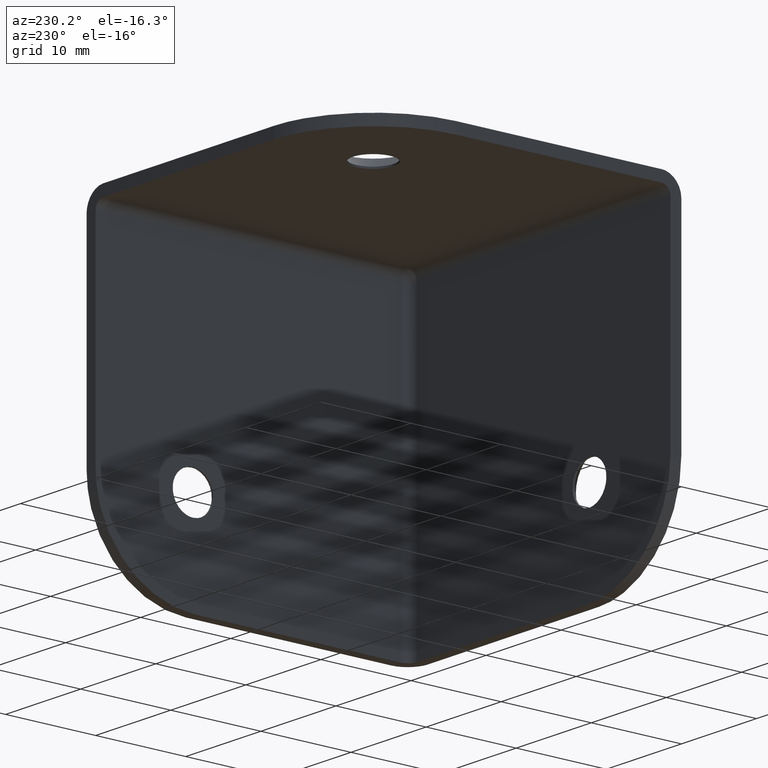
[diagram: clean part render]
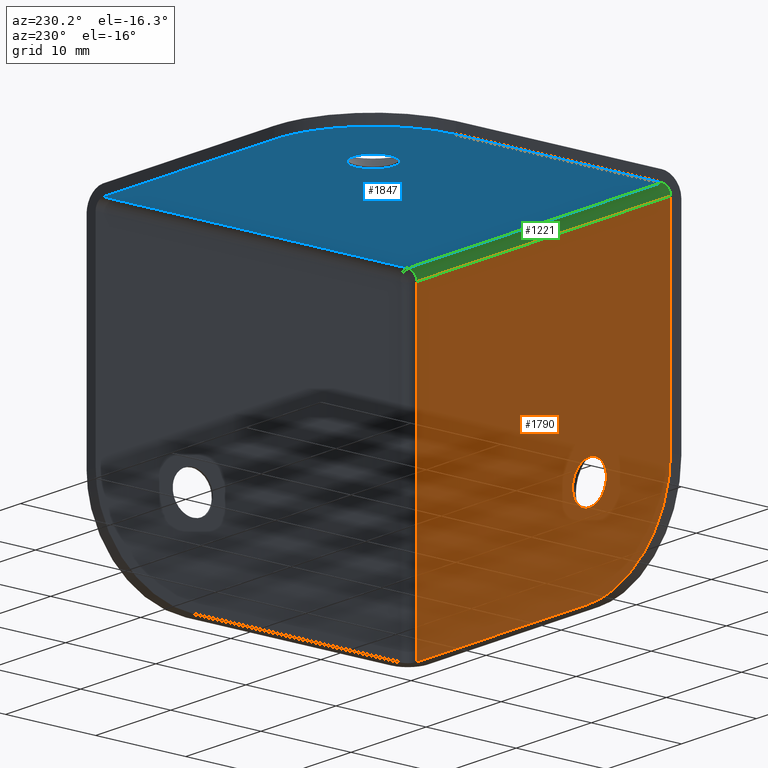
[diagram: same view with three faces highlighted in distinct colors, each labeled with its STEP entity id]
A machine part, auxiliary view with three faces highlighted in distinct colors.
Their STEP definitions:

[orange] entity #1790 — the highlighted face is a freeform B-spline surface patch.
#955=CARTESIAN_POINT('',(-22.965728565688440,1.200000000000016,11.065577028033950));
#956=VERTEX_POINT('',#955);
#962=CARTESIAN_POINT('',(-25.199999999999999,1.200000000000016,8.550000000000001));
#963=VERTEX_POINT('',#962);
#964=CARTESIAN_POINT('',(-22.965728565688437,1.200000000000016,11.065577028033951));
#965=CARTESIAN_POINT('',(-22.950000000000003,1.200000000000016,10.933254269273634));
#966=CARTESIAN_POINT('',(-22.949999999999999,1.200000000000016,10.800000000000001));
#967=CARTESIAN_POINT('',(-22.950000000000010,1.200000000000016,8.550000000000001));
#968=CARTESIAN_POINT('',(-25.199999999999999,1.200000000000016,8.550000000000001));
#976=(BOUNDED_CURVE()B_SPLINE_CURVE(2,(#964,#965,#966,#967,#968),.UNSPECIFIED.,.F.,.U.)B_SPLINE_CURVE_WITH_KNOTS((3,2,3),(0.229562473507136,0.250000000000000,0.500000000000000),.UNSPECIFIED.)CURVE()GEOMETRIC_REPRESENTATION_ITEM()RATIONAL_B_SPLINE_CURVE((0.956026754171209,0.976055948323679,1.0,0.707106781186547,1.0))REPRESENTATION_ITEM(''));
#977=EDGE_CURVE('',#956,#963,#976,.T.);
#979=CARTESIAN_POINT('',(-27.445803295993969,1.200000000000016,10.662640778603659));
#980=VERTEX_POINT('',#979);
#981=CARTESIAN_POINT('',(-25.199999999999999,1.200000000000016,8.550000000000001));
#982=CARTESIAN_POINT('',(-27.316588636482226,1.200000000000016,8.549999999999999));
#983=CARTESIAN_POINT('',(-27.445803295993976,1.200000000000016,10.662640778603658));
#991=(BOUNDED_CURVE()B_SPLINE_CURVE(2,(#981,#982,#983),.UNSPECIFIED.,.F.,.U.)B_SPLINE_CURVE_WITH_KNOTS((3,3),(0.500000000000000,0.739332961098278),.UNSPECIFIED.)CURVE()GEOMETRIC_REPRESENTATION_ITEM()RATIONAL_B_SPLINE_CURVE((1.0,0.719603994623083,0.976072039222055))REPRESENTATION_ITEM(''));
#992=EDGE_CURVE('',#963,#980,#991,.T.);
#1026=CARTESIAN_POINT('',(-25.199999999999999,1.200000000000016,13.050000000000001));
#1027=VERTEX_POINT('',#1026);
#1028=CARTESIAN_POINT('',(-27.445803295993972,1.200000000000016,10.662640778603665));
#1029=CARTESIAN_POINT('',(-27.449999999999999,1.200000000000016,10.731256275114390));
#1030=CARTESIAN_POINT('',(-27.449999999999999,1.200000000000016,10.800000000000001));
#1031=CARTESIAN_POINT('',(-27.449999999999999,1.200000000000016,13.050000000000001));
#1032=CARTESIAN_POINT('',(-25.199999999999999,1.200000000000016,13.050000000000001));
#1040=(BOUNDED_CURVE()B_SPLINE_CURVE(2,(#1028,#1029,#1030,#1031,#1032),.UNSPECIFIED.,.F.,.U.)B_SPLINE_CURVE_WITH_KNOTS((3,2,3),(0.739332961098279,0.750000000000000,1.0),.UNSPECIFIED.)CURVE()GEOMETRIC_REPRESENTATION_ITEM()RATIONAL_B_SPLINE_CURVE((0.976072039222057,0.987502786563466,1.0,0.707106781186547,1.0))REPRESENTATION_ITEM(''));
#1041=EDGE_CURVE('',#980,#1027,#1040,.T.);
#1043=CARTESIAN_POINT('',(-25.199999999999999,1.200000000000016,13.050000000000001));
#1044=CARTESIAN_POINT('',(-23.201607316710742,1.200000000000016,13.050000000000001));
#1045=CARTESIAN_POINT('',(-22.965728565688440,1.200000000000016,11.065577028033955));
#1053=(BOUNDED_CURVE()B_SPLINE_CURVE(2,(#1043,#1044,#1045),.UNSPECIFIED.,.F.,.U.)B_SPLINE_CURVE_WITH_KNOTS((3,3),(0.0,0.229562473507136),.UNSPECIFIED.)CURVE()GEOMETRIC_REPRESENTATION_ITEM()RATIONAL_B_SPLINE_CURVE((1.0,0.731050832862868,0.956026754171209))REPRESENTATION_ITEM(''));
#1054=EDGE_CURVE('',#1027,#956,#1053,.T.);
#1074=CARTESIAN_POINT('',(-2.200000000000000,1.200000000000016,0.0));
#1075=VERTEX_POINT('',#1074);
#1091=CARTESIAN_POINT('',(-2.200000000000000,1.200000000000016,33.799999999999997));
#1092=VERTEX_POINT('',#1091);
#1093=CARTESIAN_POINT('',(-2.200000000000000,1.200000000000016,33.799999999999997));
#1094=CARTESIAN_POINT('',(-2.200000000000000,1.200000000000016,0.0));
#1095=QUASI_UNIFORM_CURVE('',1,(#1093,#1094),.UNSPECIFIED.,.F.,.U.);
#1096=EDGE_CURVE('',#1092,#1075,#1095,.T.);
#1193=CARTESIAN_POINT('',(-36.0,1.200000000000016,33.799999999999997));
#1194=VERTEX_POINT('',#1193);
#1214=CARTESIAN_POINT('',(-36.0,1.200000000000016,33.799999999999997));
#1215=CARTESIAN_POINT('',(-2.200000000000000,1.200000000000016,33.799999999999997));
#1216=QUASI_UNIFORM_CURVE('',1,(#1214,#1215),.UNSPECIFIED.,.F.,.U.);
#1217=EDGE_CURVE('',#1194,#1092,#1216,.T.);
#1683=CARTESIAN_POINT('',(-25.0,1.199999999999980,0.0));
#1684=VERTEX_POINT('',#1683);
#1690=CARTESIAN_POINT('',(-25.0,1.199999999999980,0.0));
#1691=CARTESIAN_POINT('',(-2.200000000000000,1.200000000000016,0.0));
#1692=QUASI_UNIFORM_CURVE('',1,(#1690,#1691),.UNSPECIFIED.,.F.,.U.);
#1693=EDGE_CURVE('',#1684,#1075,#1692,.T.);
#1720=CARTESIAN_POINT('',(-36.0,1.199999999999980,11.0));
#1721=VERTEX_POINT('',#1720);
#1727=CARTESIAN_POINT('',(-36.000000000000007,1.199999999999980,11.0));
#1728=CARTESIAN_POINT('',(-36.000000000000014,1.199999999999980,0.0));
#1729=CARTESIAN_POINT('',(-25.0,1.199999999999980,0.0));
#1737=(BOUNDED_CURVE()B_SPLINE_CURVE(2,(#1727,#1728,#1729),.UNSPECIFIED.,.F.,.U.)CURVE()GEOMETRIC_REPRESENTATION_ITEM()QUASI_UNIFORM_CURVE()RATIONAL_B_SPLINE_CURVE((1.0,0.707106781186548,1.0))REPRESENTATION_ITEM(''));
#1738=EDGE_CURVE('',#1721,#1684,#1737,.T.);
#1763=CARTESIAN_POINT('',(-36.0,1.200000000000016,33.799999999999997));
#1764=CARTESIAN_POINT('',(-36.0,1.199999999999980,11.0));
#1765=QUASI_UNIFORM_CURVE('',1,(#1763,#1764),.UNSPECIFIED.,.F.,.U.);
#1766=EDGE_CURVE('',#1194,#1721,#1765,.T.);
#1772=CARTESIAN_POINT('',(-37.688309934489041,1.200000000000016,35.488309299908600));
#1773=CARTESIAN_POINT('',(-0.511689158924312,1.200000000000016,35.488309299908600));
#1774=CARTESIAN_POINT('',(-37.688309934489041,1.200000000000016,-1.688310810886352));
#1775=CARTESIAN_POINT('',(-0.511689158924312,1.200000000000016,-1.688310810886352));
#1776=B_SPLINE_SURFACE_WITH_KNOTS('',1,1,((#1772,#1774),(#1773,#1775)),.UNSPECIFIED.,.F.,.F.,.U.,(2,2),(2,2),(0.0,37.176620775564729),(0.0,37.176620110794950),.UNSPECIFIED.);
#1777=ORIENTED_EDGE('',*,*,#1217,.T.);
#1778=ORIENTED_EDGE('',*,*,#1096,.T.);
#1779=ORIENTED_EDGE('',*,*,#1693,.F.);
#1780=ORIENTED_EDGE('',*,*,#1738,.F.);
#1781=ORIENTED_EDGE('',*,*,#1766,.F.);
#1782=EDGE_LOOP('',(#1777,#1778,#1779,#1780,#1781));
#1783=FACE_OUTER_BOUND('',#1782,.T.);
#1784=ORIENTED_EDGE('',*,*,#992,.F.);
#1785=ORIENTED_EDGE('',*,*,#977,.F.);
#1786=ORIENTED_EDGE('',*,*,#1054,.F.);
#1787=ORIENTED_EDGE('',*,*,#1041,.F.);
#1788=EDGE_LOOP('',(#1784,#1785,#1786,#1787));
#1789=FACE_BOUND('',#1788,.T.);
#1790=ADVANCED_FACE('',(#1783,#1789),#1776,.T.);

[blue] entity #1847 — the highlighted face is a freeform B-spline surface patch.
#79=CARTESIAN_POINT('',(-24.943273435128098,27.435305677281981,34.799999999999997));
#80=VERTEX_POINT('',#79);
#86=CARTESIAN_POINT('',(-22.949999999999999,25.199999999999999,34.799999999999997));
#87=VERTEX_POINT('',#86);
#88=CARTESIAN_POINT('',(-24.943273435128102,27.435305677281978,34.799999999999997));
#89=CARTESIAN_POINT('',(-22.950000000000006,27.206376637814156,34.799999999999983));
#90=CARTESIAN_POINT('',(-22.949999999999999,25.199999999999999,34.799999999999997));
#98=(BOUNDED_CURVE()B_SPLINE_CURVE(2,(#88,#89,#90),.UNSPECIFIED.,.F.,.U.)B_SPLINE_CURVE_WITH_KNOTS((3,3),(0.269767766355862,0.500000000000000),.UNSPECIFIED.)CURVE()GEOMETRIC_REPRESENTATION_ITEM()RATIONAL_B_SPLINE_CURVE((0.957343715789334,0.730266160053430,1.0))REPRESENTATION_ITEM(''));
#99=EDGE_CURVE('',#80,#87,#98,.T.);
#101=CARTESIAN_POINT('',(-25.062640785535610,22.954196703582049,34.799999999999997));
#102=VERTEX_POINT('',#101);
#103=CARTESIAN_POINT('',(-22.949999999999999,25.199999999999999,34.799999999999997));
#104=CARTESIAN_POINT('',(-22.949999999999999,23.083411350427138,34.799999999999990));
#105=CARTESIAN_POINT('',(-25.062640785535606,22.954196703582049,34.800000000000004));
#113=(BOUNDED_CURVE()B_SPLINE_CURVE(2,(#103,#104,#105),.UNSPECIFIED.,.F.,.U.)B_SPLINE_CURVE_WITH_KNOTS((3,3),(0.500000000000000,0.739332962163452),.UNSPECIFIED.)CURVE()GEOMETRIC_REPRESENTATION_ITEM()RATIONAL_B_SPLINE_CURVE((1.0,0.719603993375153,0.976072041504927))REPRESENTATION_ITEM(''));
#114=EDGE_CURVE('',#87,#102,#113,.T.);
#209=CARTESIAN_POINT('',(-27.449999999999999,25.199999999999999,34.799999999999997));
#210=VERTEX_POINT('',#209);
#211=CARTESIAN_POINT('',(-25.062640785535606,22.954196703582049,34.799999999999990));
#212=CARTESIAN_POINT('',(-25.131256282065785,22.949999999999999,34.799999999999990));
#213=CARTESIAN_POINT('',(-25.199999999999999,22.949999999999999,34.799999999999997));
#214=CARTESIAN_POINT('',(-27.449999999999999,22.950000000000010,34.799999999999997));
#215=CARTESIAN_POINT('',(-27.449999999999999,25.199999999999999,34.799999999999997));
#223=(BOUNDED_CURVE()B_SPLINE_CURVE(2,(#211,#212,#213,#214,#215),.UNSPECIFIED.,.F.,.U.)B_SPLINE_CURVE_WITH_KNOTS((3,2,3),(0.739332962163453,0.750000000000000,1.0),.UNSPECIFIED.)CURVE()GEOMETRIC_REPRESENTATION_ITEM()RATIONAL_B_SPLINE_CURVE((0.976072041504928,0.987502787811395,1.0,0.707106781186547,1.0))REPRESENTATION_ITEM(''));
#224=EDGE_CURVE('',#102,#210,#223,.T.);
#226=CARTESIAN_POINT('',(-27.449999999999999,25.199999999999999,34.799999999999997));
#227=CARTESIAN_POINT('',(-27.449999999999999,27.449999999999999,34.799999999999997));
#228=CARTESIAN_POINT('',(-25.199999999999999,27.449999999999999,34.799999999999997));
#229=CARTESIAN_POINT('',(-25.071216151303840,27.449999999999996,34.800000000000004));
#230=CARTESIAN_POINT('',(-24.943273435128095,27.435305677281985,34.800000000000004));
#238=(BOUNDED_CURVE()B_SPLINE_CURVE(2,(#226,#227,#228,#229,#230),.UNSPECIFIED.,.F.,.U.)B_SPLINE_CURVE_WITH_KNOTS((3,2,3),(0.0,0.250000000000000,0.269767766355862),.UNSPECIFIED.)CURVE()GEOMETRIC_REPRESENTATION_ITEM()RATIONAL_B_SPLINE_CURVE((1.0,0.707106781186547,1.0,0.976840621133117,0.957343715789334))REPRESENTATION_ITEM(''));
#239=EDGE_CURVE('',#210,#80,#238,.T.);
#1145=CARTESIAN_POINT('',(-2.200000000000000,2.200000000000000,34.799999999999997));
#1146=VERTEX_POINT('',#1145);
#1191=CARTESIAN_POINT('',(-36.0,2.200000000000000,34.799999999999997));
#1192=VERTEX_POINT('',#1191);
#1208=CARTESIAN_POINT('',(-2.200000000000000,2.200000000000000,34.799999999999997));
#1209=CARTESIAN_POINT('',(-36.0,2.200000000000000,34.799999999999997));
#1210=QUASI_UNIFORM_CURVE('',1,(#1208,#1209),.UNSPECIFIED.,.F.,.U.);
#1211=EDGE_CURVE('',#1146,#1192,#1210,.T.);
#1238=CARTESIAN_POINT('',(-2.200000000000000,36.0,34.799999999999997));
#1239=VERTEX_POINT('',#1238);
#1259=CARTESIAN_POINT('',(-2.200000000000000,36.0,34.799999999999997));
#1260=CARTESIAN_POINT('',(-2.200000000000000,2.200000000000000,34.799999999999997));
#1261=QUASI_UNIFORM_CURVE('',1,(#1259,#1260),.UNSPECIFIED.,.F.,.U.);
#1262=EDGE_CURVE('',#1239,#1146,#1261,.T.);
#1505=CARTESIAN_POINT('',(-25.0,36.0,34.799999999999997));
#1506=VERTEX_POINT('',#1505);
#1512=CARTESIAN_POINT('',(-36.0,25.0,34.799999999999997));
#1513=VERTEX_POINT('',#1512);
#1514=CARTESIAN_POINT('',(-36.000000000000007,25.0,34.799999999999997));
#1515=CARTESIAN_POINT('',(-36.000000000000014,36.000000000000014,34.800000000000004));
#1516=CARTESIAN_POINT('',(-25.0,36.000000000000007,34.799999999999997));
#1524=(BOUNDED_CURVE()B_SPLINE_CURVE(2,(#1514,#1515,#1516),.UNSPECIFIED.,.F.,.U.)CURVE()GEOMETRIC_REPRESENTATION_ITEM()QUASI_UNIFORM_CURVE()RATIONAL_B_SPLINE_CURVE((1.0,0.707106781186548,1.0))REPRESENTATION_ITEM(''));
#1525=EDGE_CURVE('',#1513,#1506,#1524,.T.);
#1619=CARTESIAN_POINT('',(-25.0,36.0,34.799999999999997));
#1620=CARTESIAN_POINT('',(-2.200000000000000,36.0,34.799999999999997));
#1621=QUASI_UNIFORM_CURVE('',1,(#1619,#1620),.UNSPECIFIED.,.F.,.U.);
#1622=EDGE_CURVE('',#1506,#1239,#1621,.T.);
#1757=CARTESIAN_POINT('',(-36.0,2.200000000000000,34.799999999999997));
#1758=CARTESIAN_POINT('',(-36.0,25.0,34.799999999999997));
#1759=QUASI_UNIFORM_CURVE('',1,(#1757,#1758),.UNSPECIFIED.,.F.,.U.);
#1760=EDGE_CURVE('',#1192,#1513,#1759,.T.);
#1829=CARTESIAN_POINT('',(-37.688309934489041,37.688309934489048,34.799999999999997));
#1830=CARTESIAN_POINT('',(-0.511689158924312,37.688309934489048,34.799999999999997));
#1831=CARTESIAN_POINT('',(-37.688309934489041,0.511689158924312,34.799999999999997));
#1832=CARTESIAN_POINT('',(-0.511689158924312,0.511689158924312,34.799999999999997));
#1833=B_SPLINE_SURFACE_WITH_KNOTS('',1,1,((#1829,#1831),(#1830,#1832)),.UNSPECIFIED.,.F.,.F.,.U.,(2,2),(2,2),(0.0,37.176620775564729),(0.0,37.176620775564743),.UNSPECIFIED.);
#1834=ORIENTED_EDGE('',*,*,#1622,.T.);
#1835=ORIENTED_EDGE('',*,*,#1262,.T.);
#1836=ORIENTED_EDGE('',*,*,#1211,.T.);
#1837=ORIENTED_EDGE('',*,*,#1760,.T.);
#1838=ORIENTED_EDGE('',*,*,#1525,.T.);
#1839=EDGE_LOOP('',(#1834,#1835,#1836,#1837,#1838));
#1840=FACE_OUTER_BOUND('',#1839,.T.);
#1841=ORIENTED_EDGE('',*,*,#114,.F.);
#1842=ORIENTED_EDGE('',*,*,#99,.F.);
#1843=ORIENTED_EDGE('',*,*,#239,.F.);
#1844=ORIENTED_EDGE('',*,*,#224,.F.);
#1845=EDGE_LOOP('',(#1841,#1842,#1843,#1844));
#1846=FACE_BOUND('',#1845,.T.);
#1847=ADVANCED_FACE('',(#1840,#1846),#1833,.T.);

[green] entity #1221 — the highlighted face is a freeform B-spline surface patch.
#1091=CARTESIAN_POINT('',(-2.200000000000000,1.200000000000016,33.799999999999997));
#1092=VERTEX_POINT('',#1091);
#1145=CARTESIAN_POINT('',(-2.200000000000000,2.200000000000000,34.799999999999997));
#1146=VERTEX_POINT('',#1145);
#1147=CARTESIAN_POINT('',(-2.200000000000000,1.200000000000000,33.799999999999997));
#1148=CARTESIAN_POINT('',(-2.200000000000001,1.200000000000000,34.800000000000004));
#1149=CARTESIAN_POINT('',(-2.200000000000000,2.200000000000000,34.799999999999997));
#1157=(BOUNDED_CURVE()B_SPLINE_CURVE(2,(#1147,#1148,#1149),.UNSPECIFIED.,.F.,.U.)CURVE()GEOMETRIC_REPRESENTATION_ITEM()QUASI_UNIFORM_CURVE()RATIONAL_B_SPLINE_CURVE((1.0,0.707106781186548,1.0))REPRESENTATION_ITEM(''));
#1158=EDGE_CURVE('',#1092,#1146,#1157,.T.);
#1177=CARTESIAN_POINT('',(-1.354999999999999,2.208726535498373,34.799961923064167));
#1178=CARTESIAN_POINT('',(-36.866125000000011,2.208726535498373,34.799961923064167));
#1179=CARTESIAN_POINT('',(-1.355000000000000,1.136398657988249,34.809319986679540));
#1180=CARTESIAN_POINT('',(-36.866125000000018,1.136398657988249,34.809319986679540));
#1181=CARTESIAN_POINT('',(-1.354999999999999,1.201865201578137,33.738951460465138));
#1182=CARTESIAN_POINT('',(-36.866125000000011,1.201865201578137,33.738951460465138));
#1190=(BOUNDED_SURFACE()B_SPLINE_SURFACE(1,2,((#1177,#1179,#1181),(#1178,#1180,#1182)),.UNSPECIFIED.,.F.,.F.,.U.)B_SPLINE_SURFACE_WITH_KNOTS((2,2),(3,3),(0.0,35.511125000000007),(0.0,1.0),.UNSPECIFIED.)GEOMETRIC_REPRESENTATION_ITEM()RATIONAL_B_SPLINE_SURFACE(((1.0,0.681998360062499,1.0),(1.0,0.681998360062499,1.0)))REPRESENTATION_ITEM('')SURFACE());
#1191=CARTESIAN_POINT('',(-36.0,2.200000000000000,34.799999999999997));
#1192=VERTEX_POINT('',#1191);
#1193=CARTESIAN_POINT('',(-36.0,1.200000000000016,33.799999999999997));
#1194=VERTEX_POINT('',#1193);
#1195=CARTESIAN_POINT('',(-36.0,2.200000000000000,34.799999999999997));
#1196=CARTESIAN_POINT('',(-36.0,1.200000000000000,34.800000000000004));
#1197=CARTESIAN_POINT('',(-36.0,1.200000000000000,33.799999999999997));
#1205=(BOUNDED_CURVE()B_SPLINE_CURVE(2,(#1195,#1196,#1197),.UNSPECIFIED.,.F.,.U.)CURVE()GEOMETRIC_REPRESENTATION_ITEM()QUASI_UNIFORM_CURVE()RATIONAL_B_SPLINE_CURVE((1.0,0.707106781186548,1.0))REPRESENTATION_ITEM(''));
#1206=EDGE_CURVE('',#1192,#1194,#1205,.T.);
#1207=ORIENTED_EDGE('',*,*,#1206,.F.);
#1208=CARTESIAN_POINT('',(-2.200000000000000,2.200000000000000,34.799999999999997));
#1209=CARTESIAN_POINT('',(-36.0,2.200000000000000,34.799999999999997));
#1210=QUASI_UNIFORM_CURVE('',1,(#1208,#1209),.UNSPECIFIED.,.F.,.U.);
#1211=EDGE_CURVE('',#1146,#1192,#1210,.T.);
#1212=ORIENTED_EDGE('',*,*,#1211,.F.);
#1213=ORIENTED_EDGE('',*,*,#1158,.F.);
#1214=CARTESIAN_POINT('',(-36.0,1.200000000000016,33.799999999999997));
#1215=CARTESIAN_POINT('',(-2.200000000000000,1.200000000000016,33.799999999999997));
#1216=QUASI_UNIFORM_CURVE('',1,(#1214,#1215),.UNSPECIFIED.,.F.,.U.);
#1217=EDGE_CURVE('',#1194,#1092,#1216,.T.);
#1218=ORIENTED_EDGE('',*,*,#1217,.F.);
#1219=EDGE_LOOP('',(#1207,#1212,#1213,#1218));
#1220=FACE_OUTER_BOUND('',#1219,.T.);
#1221=ADVANCED_FACE('',(#1220),#1190,.F.);